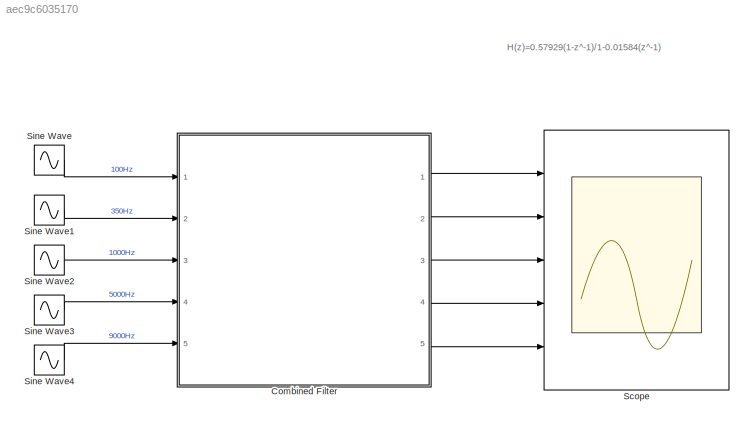
MODEL slx_aec9c6035170
KIND model
CONFIG AbsTol = auto
CONFIG EnableMultiTasking = off
CONFIG FixedStep = auto
CONFIG MaxStep = auto
CONFIG MinStep = auto
CONFIG RelTol = 1e-3
CONFIG SampleTimeConstraint = Unconstrained
CONFIG SolverName = VariableStepAuto
CONFIG StartTime = 0.0
CONFIG StopTime = 0.1
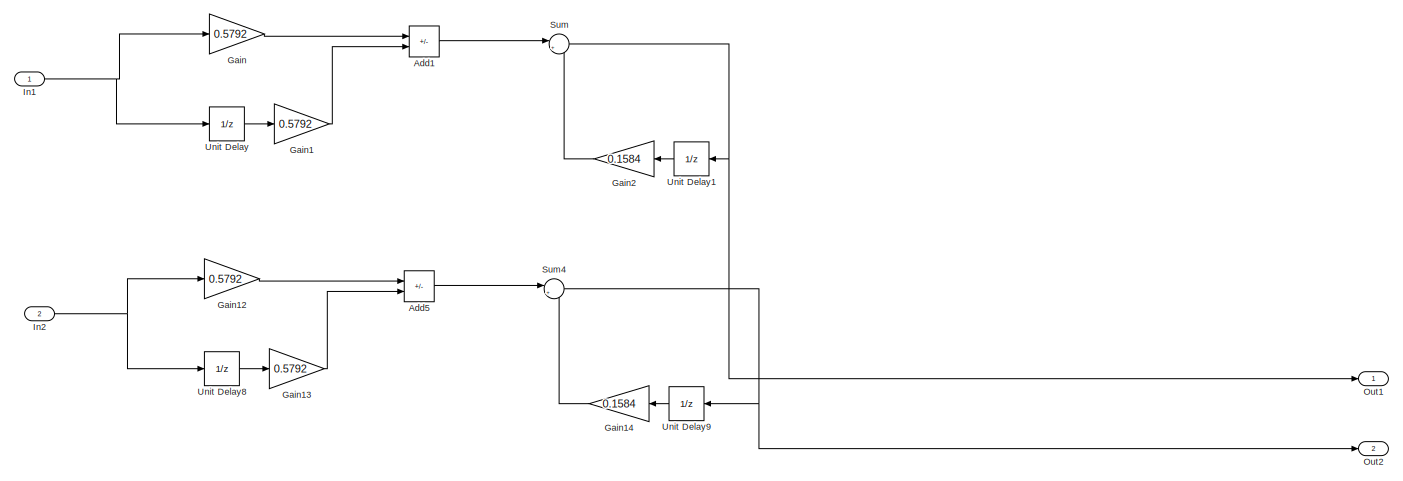
[diagram:  Combined Filter - part 1/2, full width, top band]
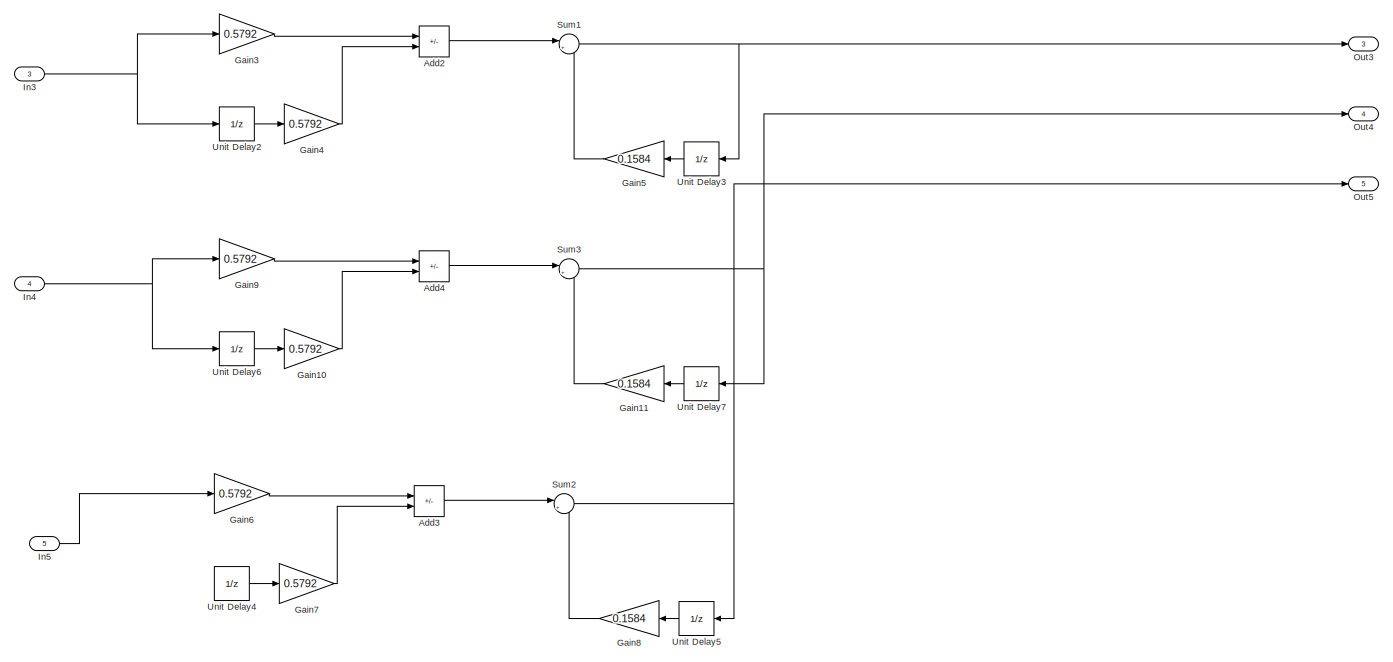
[diagram:  Combined Filter - part 2/2, full width, bottom band]
BLOCK [SubSystem]  Combined Filter
  Ports = [5, 5]
  RequestExecContextInheritance = off
BLOCK [Sum]  Combined Filter/Add1
  IconShape = rectangular
  Inputs = +-
  Ports = [2, 1]
BLOCK [Sum]  Combined Filter/Add2
  IconShape = rectangular
  Inputs = +-
  Ports = [2, 1]
BLOCK [Sum]  Combined Filter/Add3
  IconShape = rectangular
  Inputs = +-
  Ports = [2, 1]
BLOCK [Sum]  Combined Filter/Add4
  IconShape = rectangular
  Inputs = +-
  Ports = [2, 1]
BLOCK [Sum]  Combined Filter/Add5
  IconShape = rectangular
  Inputs = +-
  Ports = [2, 1]
BLOCK [Gain]  Combined Filter/Gain
  Gain = 0.5792
BLOCK [Gain]  Combined Filter/Gain1
  Gain = 0.5792
BLOCK [Gain]  Combined Filter/Gain10
  Gain = 0.5792
BLOCK [Gain]  Combined Filter/Gain11
  Gain = 0.1584
  NameLocation = top
BLOCK [Gain]  Combined Filter/Gain12
  Gain = 0.5792
BLOCK [Gain]  Combined Filter/Gain13
  Gain = 0.5792
BLOCK [Gain]  Combined Filter/Gain14
  Gain = 0.1584
  NameLocation = top
BLOCK [Gain]  Combined Filter/Gain2
  Gain = 0.1584
  NameLocation = top
BLOCK [Gain]  Combined Filter/Gain3
  Gain = 0.5792
BLOCK [Gain]  Combined Filter/Gain4
  Gain = 0.5792
BLOCK [Gain]  Combined Filter/Gain5
  Gain = 0.1584
  NameLocation = top
BLOCK [Gain]  Combined Filter/Gain6
  Gain = 0.5792
BLOCK [Gain]  Combined Filter/Gain7
  Gain = 0.5792
BLOCK [Gain]  Combined Filter/Gain8
  Gain = 0.1584
  NameLocation = top
BLOCK [Gain]  Combined Filter/Gain9
  Gain = 0.5792
BLOCK [Inport]  Combined Filter/In1
BLOCK [Inport]  Combined Filter/In2
  Port = 2
BLOCK [Inport]  Combined Filter/In3
  Port = 3
BLOCK [Inport]  Combined Filter/In4
  Port = 4
BLOCK [Inport]  Combined Filter/In5
  Port = 5
BLOCK [Outport]  Combined Filter/Out1
BLOCK [Outport]  Combined Filter/Out2
  Port = 2
BLOCK [Outport]  Combined Filter/Out3
  Port = 3
BLOCK [Outport]  Combined Filter/Out4
  Port = 4
BLOCK [Outport]  Combined Filter/Out5
  Port = 5
BLOCK [Sum]  Combined Filter/Sum
  Inputs = |++
  Ports = [2, 1]
BLOCK [Sum]  Combined Filter/Sum1
  Inputs = |++
  Ports = [2, 1]
BLOCK [Sum]  Combined Filter/Sum2
  Inputs = |++
  Ports = [2, 1]
BLOCK [Sum]  Combined Filter/Sum3
  Inputs = |++
  Ports = [2, 1]
BLOCK [Sum]  Combined Filter/Sum4
  Inputs = |++
  Ports = [2, 1]
BLOCK [UnitDelay]  Combined Filter/Unit Delay
  HasFrameUpgradeWarning = on
  SampleTime = -1
BLOCK [UnitDelay]  Combined Filter/Unit Delay1
  HasFrameUpgradeWarning = on
  NameLocation = top
  SampleTime = -1
BLOCK [UnitDelay]  Combined Filter/Unit Delay2
  HasFrameUpgradeWarning = on
  SampleTime = -1
BLOCK [UnitDelay]  Combined Filter/Unit Delay3
  HasFrameUpgradeWarning = on
  NameLocation = top
  SampleTime = -1
BLOCK [UnitDelay]  Combined Filter/Unit Delay4
  HasFrameUpgradeWarning = on
  SampleTime = -1
BLOCK [UnitDelay]  Combined Filter/Unit Delay5
  HasFrameUpgradeWarning = on
  NameLocation = top
  SampleTime = -1
BLOCK [UnitDelay]  Combined Filter/Unit Delay6
  HasFrameUpgradeWarning = on
  SampleTime = -1
BLOCK [UnitDelay]  Combined Filter/Unit Delay7
  HasFrameUpgradeWarning = on
  NameLocation = top
  SampleTime = -1
BLOCK [UnitDelay]  Combined Filter/Unit Delay8
  HasFrameUpgradeWarning = on
  SampleTime = -1
BLOCK [UnitDelay]  Combined Filter/Unit Delay9
  HasFrameUpgradeWarning = on
  NameLocation = top
  SampleTime = -1
BLOCK [Scope] Scope
  Floating = off
  NumInputPorts = 5
  Ports = [5]
  ScopeSpecificationString = Simulink.scopes.TimeScopeBlockCfg('CurrentConfiguration', extmgr.ConfigurationSet(extmgr.Configuration('Core','General UI',true),extmgr.Configuration('Core','Source UI',true),extmgr.Configuration('Sources','WiredSimulink',true),extmgr.Configuration('Visuals','Time Domain',true,'SerializedDisplays',{struct('MinYLimReal','-0.02002','MaxYLimReal','0.02002','YLabelReal','','MinYLimMag','0.00000','MaxY...<+4865ch>
BLOCK [Sin] Sine Wave
  Frequency = 2*pi*100
  Ports = [0, 1]
  SampleTime = 0
BLOCK [Sin] Sine Wave1
  Frequency = 2*pi*350
  Ports = [0, 1]
  SampleTime = 0
BLOCK [Sin] Sine Wave2
  Frequency = 2*pi*1000
  Ports = [0, 1]
  SampleTime = 0
BLOCK [Sin] Sine Wave3
  Frequency = 2*pi*5000
  Ports = [0, 1]
  SampleTime = 0
BLOCK [Sin] Sine Wave4
  Frequency = 2*pi*9000
  Ports = [0, 1]
  SampleTime = 0
ANNOTATION (root): H(z)=0.57929(1-z^-1)/1-0.01584(z^-1)
LINE  Combined Filter/Add1:1 ->  Combined Filter/Sum:1
LINE  Combined Filter/Add2:1 ->  Combined Filter/Sum1:1
LINE  Combined Filter/Add3:1 ->  Combined Filter/Sum2:1
LINE  Combined Filter/Add4:1 ->  Combined Filter/Sum3:1
LINE  Combined Filter/Add5:1 ->  Combined Filter/Sum4:1
LINE  Combined Filter/Gain10:1 ->  Combined Filter/Add4:2
LINE  Combined Filter/Gain11:1 ->  Combined Filter/Sum3:2
LINE  Combined Filter/Gain12:1 ->  Combined Filter/Add5:1
LINE  Combined Filter/Gain13:1 ->  Combined Filter/Add5:2
LINE  Combined Filter/Gain14:1 ->  Combined Filter/Sum4:2
LINE  Combined Filter/Gain1:1 ->  Combined Filter/Add1:2
LINE  Combined Filter/Gain2:1 ->  Combined Filter/Sum:2
LINE  Combined Filter/Gain3:1 ->  Combined Filter/Add2:1
LINE  Combined Filter/Gain4:1 ->  Combined Filter/Add2:2
LINE  Combined Filter/Gain5:1 ->  Combined Filter/Sum1:2
LINE  Combined Filter/Gain6:1 ->  Combined Filter/Add3:1
LINE  Combined Filter/Gain7:1 ->  Combined Filter/Add3:2
LINE  Combined Filter/Gain8:1 ->  Combined Filter/Sum2:2
LINE  Combined Filter/Gain9:1 ->  Combined Filter/Add4:1
LINE  Combined Filter/Gain:1 ->  Combined Filter/Add1:1
NET  Combined Filter/In1:1 ->  Combined Filter/Gain:1,  Combined Filter/Unit Delay:1
NET  Combined Filter/In2:1 ->  Combined Filter/Gain12:1,  Combined Filter/Unit Delay8:1
NET  Combined Filter/In3:1 ->  Combined Filter/Gain3:1,  Combined Filter/Unit Delay2:1
NET  Combined Filter/In4:1 ->  Combined Filter/Gain9:1,  Combined Filter/Unit Delay6:1
LINE  Combined Filter/In5:1 ->  Combined Filter/Gain6:1
NET  Combined Filter/Sum1:1 ->  Combined Filter/Out3:1,  Combined Filter/Unit Delay3:1
NET  Combined Filter/Sum2:1 ->  Combined Filter/Out5:1,  Combined Filter/Unit Delay5:1
NET  Combined Filter/Sum3:1 ->  Combined Filter/Out4:1,  Combined Filter/Unit Delay7:1
NET  Combined Filter/Sum4:1 ->  Combined Filter/Out2:1,  Combined Filter/Unit Delay9:1
NET  Combined Filter/Sum:1 ->  Combined Filter/Out1:1,  Combined Filter/Unit Delay1:1
LINE  Combined Filter/Unit Delay1:1 ->  Combined Filter/Gain2:1
LINE  Combined Filter/Unit Delay2:1 ->  Combined Filter/Gain4:1
LINE  Combined Filter/Unit Delay3:1 ->  Combined Filter/Gain5:1
LINE  Combined Filter/Unit Delay4:1 ->  Combined Filter/Gain7:1
LINE  Combined Filter/Unit Delay5:1 ->  Combined Filter/Gain8:1
LINE  Combined Filter/Unit Delay6:1 ->  Combined Filter/Gain10:1
LINE  Combined Filter/Unit Delay7:1 ->  Combined Filter/Gain11:1
LINE  Combined Filter/Unit Delay8:1 ->  Combined Filter/Gain13:1
LINE  Combined Filter/Unit Delay9:1 ->  Combined Filter/Gain14:1
LINE  Combined Filter/Unit Delay:1 ->  Combined Filter/Gain1:1
LINE  Combined Filter:1 -> Scope:1
LINE  Combined Filter:2 -> Scope:2
LINE  Combined Filter:3 -> Scope:3
LINE  Combined Filter:4 -> Scope:4
LINE  Combined Filter:5 -> Scope:5
LINE Sine Wave1:1 ->  Combined Filter:2
LINE Sine Wave2:1 ->  Combined Filter:3
LINE Sine Wave3:1 ->  Combined Filter:4
LINE Sine Wave4:1 ->  Combined Filter:5
LINE Sine Wave:1 ->  Combined Filter:1
note: NET lines group one-source signal fan-out (src -> all destinations, sorted); 1:1 wires keep LINE
